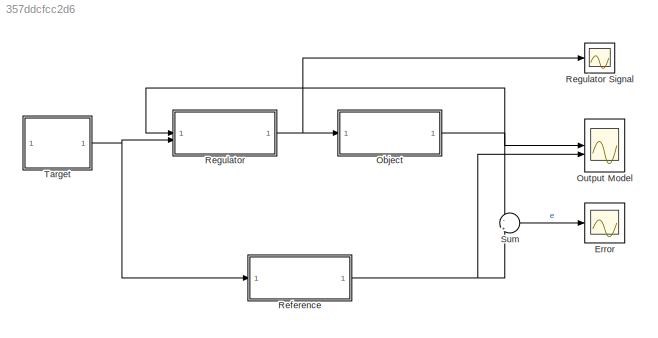
MODEL slx_357ddcfcc2d6
KIND model
CONFIG AbsTol = auto
CONFIG EnableMultiTasking = off
CONFIG FixedStep = 1e-3
CONFIG MaxStep = auto
CONFIG MinStep = auto
CONFIG RelTol = 1e-3
CONFIG SampleTimeConstraint = Unconstrained
CONFIG SolverName = FixedStepAuto
CONFIG StartTime = 0.0
CONFIG StopTime = 50
BLOCK [Scope] Error
  Floating = off
  NumInputPorts = 1
  ScopeSpecificationString = Simulink.scopes.TimeScopeBlockCfg('CurrentConfiguration', extmgr.ConfigurationSet(extmgr.Configuration('Core','General UI',true,'FigureColor',[1 1 1]),extmgr.Configuration('Core','Source UI',true),extmgr.Configuration('Sources','WiredSimulink',true,'DataLoggingVariableName','ScopeData2'),extmgr.Configuration('Visuals','Time Domain',true,'SerializedDisplays',{struct('MinYLimReal','-87.89211','MaxYL...<+1678ch>
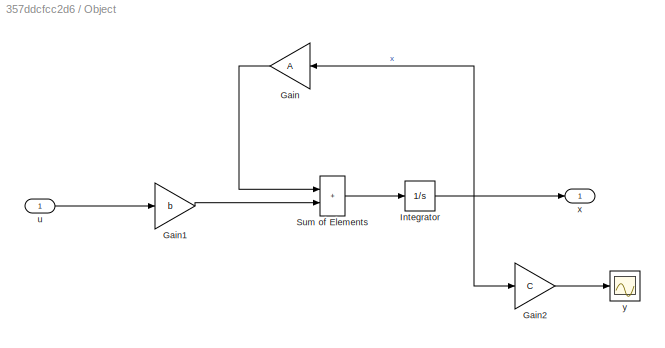
BLOCK [SubSystem] Object
BLOCK [Gain] Object/Gain
  Gain = A
  Multiplication = Matrix(K*u)
  NameLocation = top
BLOCK [Gain] Object/Gain1
  Gain = b
  Multiplication = Matrix(K*u)
BLOCK [Gain] Object/Gain2
  Gain = C
  Multiplication = Matrix(K*u)
BLOCK [Integrator] Object/Integrator
  InitialCondition = 1
BLOCK [Sum] Object/Sum of Elements
  IconShape = rectangular
BLOCK [Inport] Object/u
BLOCK [Outport] Object/x
BLOCK [Scope] Object/y
  Floating = off
  NumInputPorts = 1
  ScopeSpecificationString = Simulink.scopes.TimeScopeBlockCfg('CurrentConfiguration', extmgr.ConfigurationSet(extmgr.Configuration('Core','General UI',true,'FigureColor',[1 1 1]),extmgr.Configuration('Core','Source UI',true),extmgr.Configuration('Sources','WiredSimulink',true,'DataLoggingVariableName','ScopeData1'),extmgr.Configuration('Visuals','Time Domain',true,'SerializedDisplays',{struct('MinYLimReal','-93.5393','MaxYLi...<+1650ch>
BLOCK [Scope] Output Model
  Floating = off
  NumInputPorts = 2
  ScopeSpecificationString = Simulink.scopes.TimeScopeBlockCfg('CurrentConfiguration', extmgr.ConfigurationSet(extmgr.Configuration('Core','General UI',true,'FigureColor',[1 1 1]),extmgr.Configuration('Core','Source UI',true),extmgr.Configuration('Sources','WiredSimulink',true),extmgr.Configuration('Visuals','Time Domain',true,'SerializedDisplays',{struct('MinYLimReal','-93.5393','MaxYLimReal','102.93554','YLabelReal','','Min...<+1909ch>
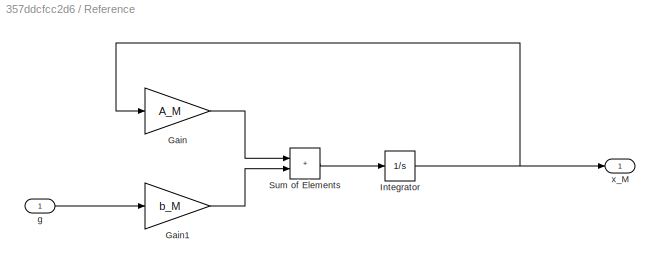
BLOCK [SubSystem] Reference
BLOCK [Gain] Reference/Gain
  Gain = A_M
  Multiplication = Matrix(K*u)
BLOCK [Gain] Reference/Gain1
  Gain = b_M
  Multiplication = Matrix(K*u)
BLOCK [Integrator] Reference/Integrator
BLOCK [Sum] Reference/Sum of Elements
  IconShape = rectangular
BLOCK [Inport] Reference/g
BLOCK [Outport] Reference/x_M
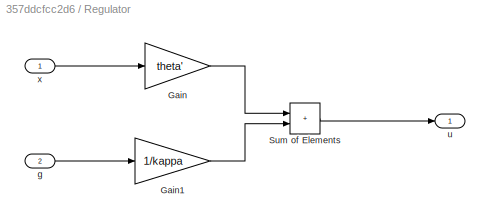
BLOCK [SubSystem] Regulator
BLOCK [Scope] Regulator Signal
  Floating = off
  NumInputPorts = 1
  ScopeSpecificationString = Simulink.scopes.TimeScopeBlockCfg('CurrentConfiguration', extmgr.ConfigurationSet(extmgr.Configuration('Core','General UI',true,'FigureColor',[1 1 1]),extmgr.Configuration('Core','Source UI',true),extmgr.Configuration('Sources','WiredSimulink',true,'DataLoggingVariableName','ScopeData1'),extmgr.Configuration('Visuals','Time Domain',true,'SerializedDisplays',{struct('MinYLimReal','-1276.04643','Max...<+1648ch>
BLOCK [Gain] Regulator/Gain
  Gain = theta'
  Multiplication = Matrix(K*u)
BLOCK [Gain] Regulator/Gain1
  Gain = 1/kappa
  Multiplication = Matrix(K*u)
BLOCK [Sum] Regulator/Sum of Elements
  IconShape = rectangular
BLOCK [Inport] Regulator/g
  Port = 2
BLOCK [Outport] Regulator/u
BLOCK [Inport] Regulator/x
BLOCK [Sum] Sum
  Inputs = -|+
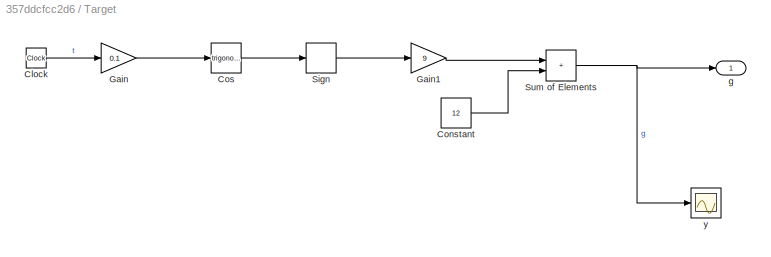
BLOCK [SubSystem] Target
BLOCK [Clock] Target/Clock
BLOCK [Constant] Target/Constant
  Value = 12
BLOCK [Trigonometry] Target/Cos
BLOCK [Gain] Target/Gain
  Gain = 0.1
BLOCK [Gain] Target/Gain1
  Gain = 9
BLOCK [Signum] Target/Sign
BLOCK [Sum] Target/Sum of Elements
  IconShape = rectangular
BLOCK [Outport] Target/g
BLOCK [Scope] Target/y
  Floating = off
  NumInputPorts = 1
  ScopeSpecificationString = Simulink.scopes.TimeScopeBlockCfg('CurrentConfiguration', extmgr.ConfigurationSet(extmgr.Configuration('Core','General UI',true,'FigureColor',[1 1 1]),extmgr.Configuration('Core','Source UI',true),extmgr.Configuration('Sources','WiredSimulink',true,'DataLoggingVariableName','ScopeData2'),extmgr.Configuration('Visuals','Time Domain',true,'SerializedDisplays',{struct('MinYLimReal','0.75','MaxYLimRea...<+1603ch>
LINE Object/Gain1:1 -> Object/Sum of Elements:2
LINE Object/Gain2:1 -> Object/y:1
LINE Object/Gain:1 -> Object/Sum of Elements:1
NET Object/Integrator:1 -> Object/Gain2:1, Object/Gain:1, Object/x:1
LINE Object/Sum of Elements:1 -> Object/Integrator:1
LINE Object/u:1 -> Object/Gain1:1
NET Object:1 -> Output Model:1, Regulator:1, Sum:1
LINE Reference/Gain1:1 -> Reference/Sum of Elements:2
LINE Reference/Gain:1 -> Reference/Sum of Elements:1
NET Reference/Integrator:1 -> Reference/Gain:1, Reference/x_M:1
LINE Reference/Sum of Elements:1 -> Reference/Integrator:1
LINE Reference/g:1 -> Reference/Gain1:1
NET Reference:1 -> Output Model:2, Sum:2
LINE Regulator/Gain1:1 -> Regulator/Sum of Elements:2
LINE Regulator/Gain:1 -> Regulator/Sum of Elements:1
LINE Regulator/Sum of Elements:1 -> Regulator/u:1
LINE Regulator/g:1 -> Regulator/Gain1:1
LINE Regulator/x:1 -> Regulator/Gain:1
NET Regulator:1 -> Object:1, Regulator Signal:1
LINE Sum:1 -> Error:1
LINE Target/Clock:1 -> Target/Gain:1
LINE Target/Constant:1 -> Target/Sum of Elements:2
LINE Target/Cos:1 -> Target/Sign:1
LINE Target/Gain1:1 -> Target/Sum of Elements:1
LINE Target/Gain:1 -> Target/Cos:1
LINE Target/Sign:1 -> Target/Gain1:1
NET Target/Sum of Elements:1 -> Target/g:1, Target/y:1
NET Target:1 -> Reference:1, Regulator:2
note: NET lines group one-source signal fan-out (src -> all destinations, sorted); 1:1 wires keep LINE
